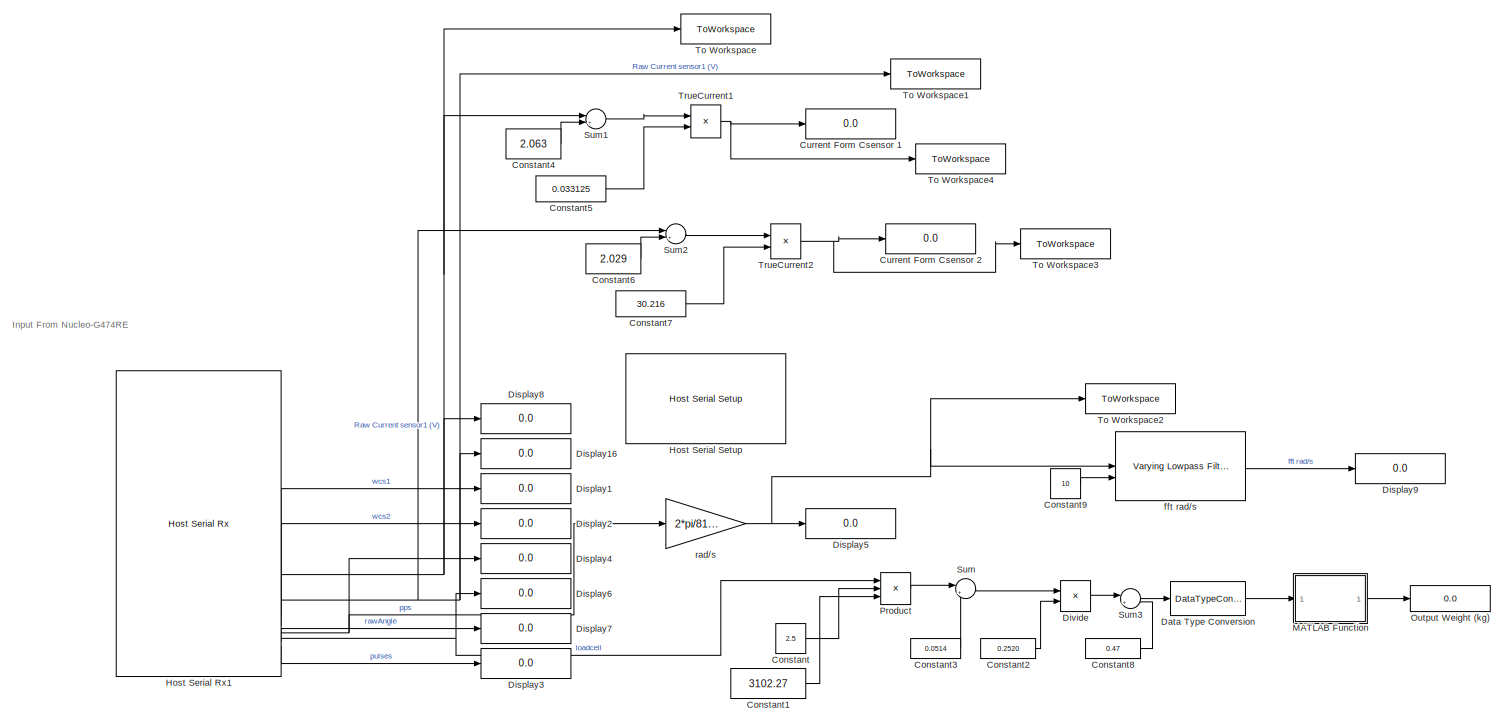
[diagram: root canvas - part 1/4, full width, top band]
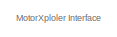
[diagram: root canvas - part 2/4, top left region]
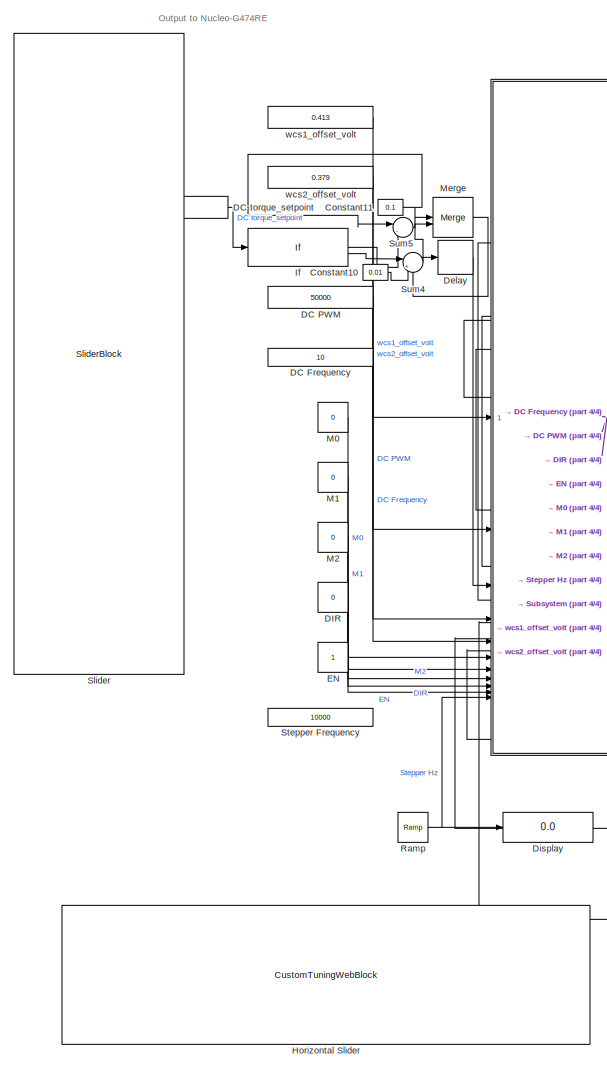
[diagram: root canvas - part 3/4, bottom left region]
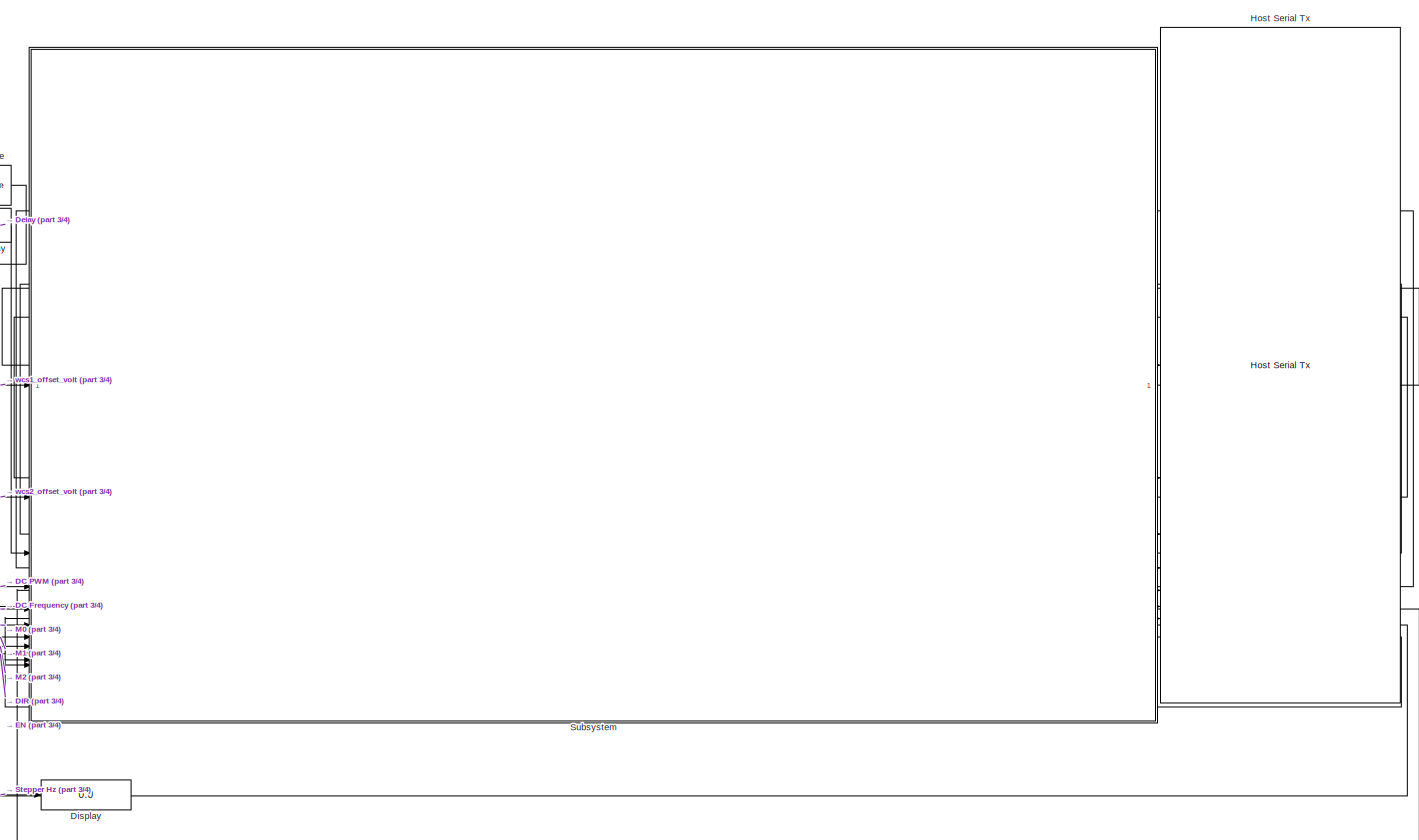
[diagram: root canvas - part 4/4, central region]
MODEL slx_10632bbbb3b5
KIND model
CONFIG AbsTol = auto
CONFIG EnableMultiTasking = off
CONFIG FixedStep = 0.01
CONFIG MaxStep = auto
CONFIG MinStep = auto
CONFIG RelTol = 1e-3
CONFIG SampleTimeConstraint = Unconstrained
CONFIG SolverName = FixedStepAuto
CONFIG StartTime = 0.0
CONFIG StopTime = inf
BLOCK [Display]   Output Weight (kg)
  Decimation = 1
BLOCK [Constant] Constant
  Value = 2.5
BLOCK [Constant] Constant1
  Value = 3102.27
BLOCK [Constant] Constant10
  Value = 0.01
BLOCK [Constant] Constant11
  Value = 0.1
BLOCK [Constant] Constant2
  Value = 0.2520
BLOCK [Constant] Constant3
  Value = 0.0514
BLOCK [Constant] Constant4
  Value = 2.063
BLOCK [Constant] Constant5
  Value = 0.033125
BLOCK [Constant] Constant6
  Value = 2.029
BLOCK [Constant] Constant7
  Value = 30.216
BLOCK [Constant] Constant8
  Value = 0.47
BLOCK [Constant] Constant9
  Value = 10
BLOCK [Display] Current Form Csensor 1
  Decimation = 1
BLOCK [Display] Current Form Csensor 2
  Decimation = 1
BLOCK [Constant] DC Frequency
  Value = 10
BLOCK [Constant] DC PWM
  Value = 50000
BLOCK [Constant] DC torque_setpoint
  Value = 0
BLOCK [Constant] DIR
  OutDataTypeStr = uint8
  Value = 0
BLOCK [DataTypeConversion] Data Type Conversion
  OutDataTypeStr = double
  RndMeth = Floor
  SaturateOnIntegerOverflow = off
BLOCK [Delay] Delay
  DelayLength = 100
  InputPortMap = u0
BLOCK [Display] Display
  Decimation = 1
BLOCK [Display] Display1
  Decimation = 1
BLOCK [Display] Display16
  Decimation = 1
BLOCK [Display] Display2
  Decimation = 1
BLOCK [Display] Display3
  Decimation = 1
BLOCK [Display] Display4
  Decimation = 1
BLOCK [Display] Display5
  Decimation = 1
BLOCK [Display] Display6
  Decimation = 1
BLOCK [Display] Display7
  Decimation = 1
BLOCK [Display] Display8
  Decimation = 1
BLOCK [Display] Display9
  Decimation = 1
BLOCK [Product] Divide
  Inputs = */
BLOCK [Constant] EN
  OutDataTypeStr = uint8
BLOCK [CustomTuningWebBlock] Horizontal Slider
  Configuration = {"components":[{"name":"LinearScaleComponent","settings":{"bounds":{"max":22000,"min":1000,"tickInterval":"auto"},"internalTickHeightScaleFactor":0.5,"labelColor":[255,255,200],"labelFont":{"font":"Arial","fontSize":12},"labelOffset":0.05,"labelTransparency":1,"needleImage":{"size":[596,842],"src":"data:image\/svg+xml;base64,PD94bWwgdmVyc2lvbj0iMS4wIiBlbmNvZGluZz0idXRmLTgiPz4NCjwhLS0gR2VuZXJhdG9yO...<+5495ch>
  LabelPosition = Hide
  ShowInitialText = on
BLOCK [Reference] Host Serial Rx1  REF=amg_usbconverter_n_connect_lib/Host Serial Rx
  SourceBlock = amg_usbconverter_n_connect_lib/Host Serial Rx
  SourceProductName = aMG USB Converter N
  SourceType = amg_usbconverter_n_connect
BLOCK [Reference] Host Serial Setup  REF=amg_usbconverter_n_connect_lib/Host Serial Setup
  SourceBlock = amg_usbconverter_n_connect_lib/Host Serial Setup
  SourceProductName = aMG USB Converter N
  SourceType = amg_usbconverter_n_connect
BLOCK [Reference] Host Serial Tx  REF=amg_usbconverter_n_connect_lib/Host Serial Tx
  SourceBlock = amg_usbconverter_n_connect_lib/Host Serial Tx
  SourceProductName = aMG USB Converter N
  SourceType = amg_usbconverter_n_connect
BLOCK [If] If
  IfExpression = u1 > 0.1
BLOCK [Constant] M0
  OutDataTypeStr = uint8
  Value = 0
BLOCK [Constant] M1
  OutDataTypeStr = uint8
  Value = 0
BLOCK [Constant] M2
  OutDataTypeStr = uint8
  Value = 0
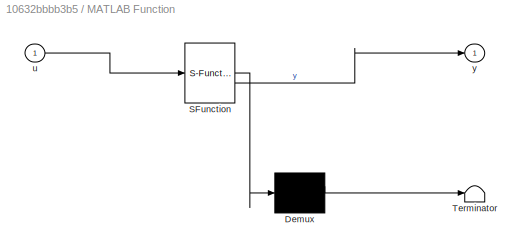
BLOCK [SubSystem] MATLAB Function
  ErrorFcn = Stateflow.Translate.translate
  PermitHierarchicalResolution = ExplicitOnly
  SFBlockType = MATLAB Function
  TreatAsAtomicUnit = on
BLOCK [Demux] MATLAB Function/ Demux 
  Outputs = 1
BLOCK [S-Function] MATLAB Function/ SFunction 
  EnableBusSupport = on
  FunctionName = sf_sfun
  PortCounts = [1 2]
  SFcnIsStateOwnerBlock = off
  SFunctionDeploymentMode = off
  Tag = Stateflow S-Function 2
BLOCK [Terminator] MATLAB Function/ Terminator 
BLOCK [Inport] MATLAB Function/u
BLOCK [Outport] MATLAB Function/y
BLOCK [Merge] Merge
BLOCK [Product] Product
  Inputs = **/
BLOCK [Reference] Ramp  REF=simulink/Sources/Ramp
  SourceBlock = simulink/Sources/Ramp
  SourceType = Ramp
BLOCK [SliderBlock] Slider
  NameLocation = left
  ScaleMax = 65535
  ScaleMin = -65535
BLOCK [Constant] Stepper Frequency
  Value = 10000
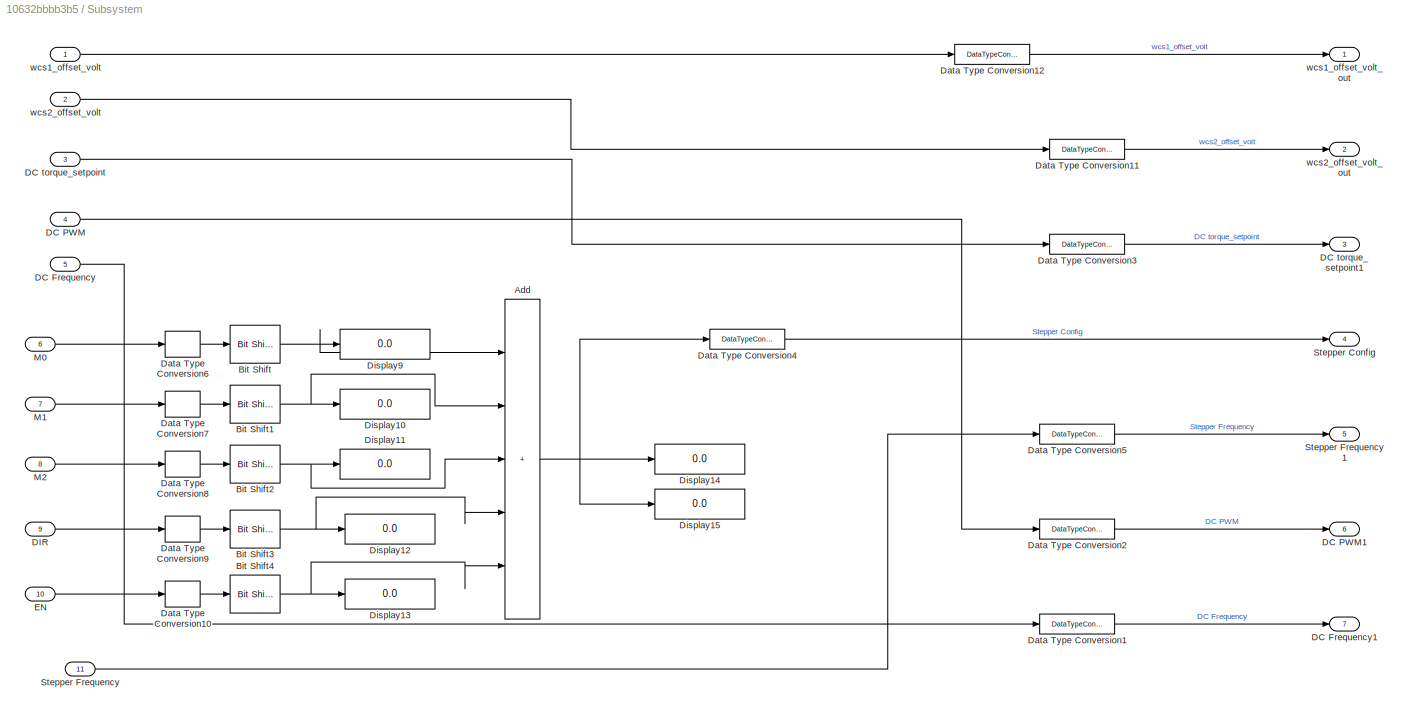
BLOCK [SubSystem] Subsystem
BLOCK [Sum] Subsystem/Add
  IconShape = rectangular
  Inputs = +++++
BLOCK [Reference] Subsystem/Bit Shift  REF=hdlsllib/Logic and Bit
Operations/Bit Shift
  SourceBlock = hdlsllib/Logic and Bit\nOperations/Bit Shift
  SourceType = Bit Shift
BLOCK [Reference] Subsystem/Bit Shift1  REF=hdlsllib/Logic and Bit
Operations/Bit Shift
  SourceBlock = hdlsllib/Logic and Bit\nOperations/Bit Shift
  SourceType = Bit Shift
BLOCK [Reference] Subsystem/Bit Shift2  REF=hdlsllib/Logic and Bit
Operations/Bit Shift
  SourceBlock = hdlsllib/Logic and Bit\nOperations/Bit Shift
  SourceType = Bit Shift
BLOCK [Reference] Subsystem/Bit Shift3  REF=hdlsllib/Logic and Bit
Operations/Bit Shift
  SourceBlock = hdlsllib/Logic and Bit\nOperations/Bit Shift
  SourceType = Bit Shift
BLOCK [Reference] Subsystem/Bit Shift4  REF=hdlsllib/Logic and Bit
Operations/Bit Shift
  SourceBlock = hdlsllib/Logic and Bit\nOperations/Bit Shift
  SourceType = Bit Shift
BLOCK [Inport] Subsystem/DC Frequency
  Port = 5
BLOCK [Outport] Subsystem/DC Frequency1
  Port = 7
BLOCK [Inport] Subsystem/DC PWM
  Port = 4
BLOCK [Outport] Subsystem/DC PWM1
  Port = 6
BLOCK [Inport] Subsystem/DC torque_setpoint
  Port = 3
BLOCK [Outport] Subsystem/DC torque_setpoint1
  Port = 3
BLOCK [Inport] Subsystem/DIR
  Port = 9
BLOCK [DataTypeConversion] Subsystem/Data Type Conversion1
  OutDataTypeStr = int32
  RndMeth = Floor
  SaturateOnIntegerOverflow = off
BLOCK [DataTypeConversion] Subsystem/Data Type Conversion10
  OutDataTypeStr = uint8
  RndMeth = Floor
  SaturateOnIntegerOverflow = off
BLOCK [DataTypeConversion] Subsystem/Data Type Conversion11
  OutDataTypeStr = single
  RndMeth = Floor
  SaturateOnIntegerOverflow = off
BLOCK [DataTypeConversion] Subsystem/Data Type Conversion12
  OutDataTypeStr = single
  RndMeth = Floor
  SaturateOnIntegerOverflow = off
BLOCK [DataTypeConversion] Subsystem/Data Type Conversion2
  OutDataTypeStr = int32
  RndMeth = Floor
  SaturateOnIntegerOverflow = off
BLOCK [DataTypeConversion] Subsystem/Data Type Conversion3
  OutDataTypeStr = single
  RndMeth = Floor
  SaturateOnIntegerOverflow = off
BLOCK [DataTypeConversion] Subsystem/Data Type Conversion4
  OutDataTypeStr = uint8
  RndMeth = Floor
  SaturateOnIntegerOverflow = off
BLOCK [DataTypeConversion] Subsystem/Data Type Conversion5
  OutDataTypeStr = int32
  RndMeth = Floor
  SaturateOnIntegerOverflow = off
BLOCK [DataTypeConversion] Subsystem/Data Type Conversion6
  OutDataTypeStr = uint8
  RndMeth = Floor
  SaturateOnIntegerOverflow = off
BLOCK [DataTypeConversion] Subsystem/Data Type Conversion7
  OutDataTypeStr = uint8
  RndMeth = Floor
  SaturateOnIntegerOverflow = off
BLOCK [DataTypeConversion] Subsystem/Data Type Conversion8
  OutDataTypeStr = uint8
  RndMeth = Floor
  SaturateOnIntegerOverflow = off
BLOCK [DataTypeConversion] Subsystem/Data Type Conversion9
  OutDataTypeStr = uint8
  RndMeth = Floor
  SaturateOnIntegerOverflow = off
BLOCK [Display] Subsystem/Display10
  Decimation = 1
  Format = binary (Stored Integer)
BLOCK [Display] Subsystem/Display11
  Decimation = 1
  Format = binary (Stored Integer)
BLOCK [Display] Subsystem/Display12
  Decimation = 1
  Format = binary (Stored Integer)
BLOCK [Display] Subsystem/Display13
  Decimation = 1
  Format = binary (Stored Integer)
BLOCK [Display] Subsystem/Display14
  Decimation = 1
  Format = binary (Stored Integer)
BLOCK [Display] Subsystem/Display15
  Decimation = 1
BLOCK [Display] Subsystem/Display9
  Decimation = 1
  Format = binary (Stored Integer)
BLOCK [Inport] Subsystem/EN
  Port = 10
BLOCK [Inport] Subsystem/M0
  Port = 6
BLOCK [Inport] Subsystem/M1
  Port = 7
BLOCK [Inport] Subsystem/M2
  Port = 8
BLOCK [Outport] Subsystem/Stepper Config
  Port = 4
BLOCK [Inport] Subsystem/Stepper Frequency
  Port = 11
BLOCK [Outport] Subsystem/Stepper Frequency1
  Port = 5
BLOCK [Inport] Subsystem/wcs1_offset_volt
BLOCK [Outport] Subsystem/wcs1_offset_volt_out
BLOCK [Inport] Subsystem/wcs2_offset_volt
  Port = 2
BLOCK [Outport] Subsystem/wcs2_offset_volt_out
  Port = 2
BLOCK [Sum] Sum
  Inputs = |++
BLOCK [Sum] Sum1
  Inputs = |+-
BLOCK [Sum] Sum2
  Inputs = |+-
BLOCK [Sum] Sum3
  Inputs = |+-
BLOCK [Sum] Sum4
  Inputs = |++
BLOCK [Sum] Sum5
  Inputs = |-+
BLOCK [ToWorkspace] To Workspace
  Decimation = 20
  FixptAsFi = on
  MaxDataPoints = 300
  SampleTime = -1
  Save2DSignal = 2-D array (concatenate along first dimension)
  VariableName = rawV1
BLOCK [ToWorkspace] To Workspace1
  FixptAsFi = on
  MaxDataPoints = 300
  SampleTime = -1
  Save2DSignal = 2-D array (concatenate along first dimension)
  VariableName = rawV2
BLOCK [ToWorkspace] To Workspace2
  FixptAsFi = on
  SampleTime = -1
  Save2DSignal = 2-D array (concatenate along first dimension)
  VariableName = rawradsform1000Hzstepper
BLOCK [ToWorkspace] To Workspace3
  FixptAsFi = on
  MaxDataPoints = 300
  SampleTime = -1
  VariableName = TrueCurrent2
BLOCK [ToWorkspace] To Workspace4
  FixptAsFi = on
  MaxDataPoints = 300
  SampleTime = -1
  VariableName = TrueCurrent1
BLOCK [Product] TrueCurrent1
  Inputs = */
BLOCK [Product] TrueCurrent2
  Inputs = **
BLOCK [Reference] fft rad//s  REF=cstblocks/Linear Parameter Varying/Varying Lowpass Filter
  SourceBlock = cstblocks/Linear Parameter Varying/Varying Lowpass Filter
  SourceType = Varying Lowpass Filter
BLOCK [Gain] rad//s
  Gain = 2*pi/8192
BLOCK [Constant] wcs1_offset_volt
  OutDataTypeStr = single
  Value = 0.413
BLOCK [Constant] wcs2_offset_volt
  OutDataTypeStr = single
  Value = 0.379
ANNOTATION (root): Input From Nucleo-G474RE
ANNOTATION (root): MotorXploler Interface
ANNOTATION (root): Output to Nucleo-G474RE
LINE Constant10:1 -> Sum4:2
LINE Constant11:1 -> Sum5:1
LINE Constant1:1 -> Product:3
LINE Constant2:1 -> Divide:2
LINE Constant3:1 -> Sum:2
LINE Constant4:1 -> Sum1:2
LINE Constant5:1 -> TrueCurrent1:2
LINE Constant6:1 -> Sum2:2
LINE Constant7:1 -> TrueCurrent2:2
LINE Constant8:1 -> Sum3:2
LINE Constant9:1 -> fft rad//s:2
LINE Constant:1 -> Product:2
LINE DC Frequency:1 -> Subsystem:5
LINE DC PWM:1 -> Subsystem:4
LINE DC torque_setpoint:1 -> If:1
LINE DIR:1 -> Subsystem:9
LINE Data Type Conversion:1 -> MATLAB Function:1
LINE Delay:1 -> Subsystem:3
LINE Divide:1 -> Sum3:1
LINE EN:1 -> Subsystem:10
NET Host Serial Rx1:2 -> Display8:1, Sum1:1, To Workspace:1
NET Host Serial Rx1:3 -> Display16:1, Sum2:1, To Workspace1:1
LINE Host Serial Rx1:4 -> Display1:1
LINE Host Serial Rx1:5 -> Display2:1
NET Host Serial Rx1:6 -> Display4:1, rad//s:1
NET Host Serial Rx1:7 -> Display6:1, Product:1
LINE Host Serial Rx1:8 -> Display7:1
LINE Host Serial Rx1:9 -> Display3:1
LINE If:1 -> Sum5:2
LINE If:2 -> Sum4:1
LINE M0:1 -> Subsystem:6
LINE M1:1 -> Subsystem:7
LINE M2:1 -> Subsystem:8
LINE MATLAB Function:1 ->   Output Weight (kg):1
LINE Merge:1 -> Delay:1
LINE Product:1 -> Sum:1
NET Ramp:1 -> Display:1, Subsystem:11
NET Subsystem/Add:1 -> Subsystem/Data Type Conversion4:1, Subsystem/Display14:1, Subsystem/Display15:1
NET Subsystem/Bit Shift1:1 -> Subsystem/Add:2, Subsystem/Display10:1
NET Subsystem/Bit Shift2:1 -> Subsystem/Add:3, Subsystem/Display11:1
NET Subsystem/Bit Shift3:1 -> Subsystem/Add:4, Subsystem/Display12:1
NET Subsystem/Bit Shift4:1 -> Subsystem/Add:5, Subsystem/Display13:1
NET Subsystem/Bit Shift:1 -> Subsystem/Add:1, Subsystem/Display9:1
LINE Subsystem/DC Frequency:1 -> Subsystem/Data Type Conversion1:1
LINE Subsystem/DC PWM:1 -> Subsystem/Data Type Conversion2:1
LINE Subsystem/DC torque_setpoint:1 -> Subsystem/Data Type Conversion3:1
LINE Subsystem/DIR:1 -> Subsystem/Data Type Conversion9:1
LINE Subsystem/Data Type Conversion10:1 -> Subsystem/Bit Shift4:1
LINE Subsystem/Data Type Conversion11:1 -> Subsystem/wcs2_offset_volt_out:1
LINE Subsystem/Data Type Conversion12:1 -> Subsystem/wcs1_offset_volt_out:1
LINE Subsystem/Data Type Conversion1:1 -> Subsystem/DC Frequency1:1
LINE Subsystem/Data Type Conversion2:1 -> Subsystem/DC PWM1:1
LINE Subsystem/Data Type Conversion3:1 -> Subsystem/DC torque_setpoint1:1
LINE Subsystem/Data Type Conversion4:1 -> Subsystem/Stepper Config:1
LINE Subsystem/Data Type Conversion5:1 -> Subsystem/Stepper Frequency1:1
LINE Subsystem/Data Type Conversion6:1 -> Subsystem/Bit Shift:1
LINE Subsystem/Data Type Conversion7:1 -> Subsystem/Bit Shift1:1
LINE Subsystem/Data Type Conversion8:1 -> Subsystem/Bit Shift2:1
LINE Subsystem/Data Type Conversion9:1 -> Subsystem/Bit Shift3:1
LINE Subsystem/EN:1 -> Subsystem/Data Type Conversion10:1
LINE Subsystem/M0:1 -> Subsystem/Data Type Conversion6:1
LINE Subsystem/M1:1 -> Subsystem/Data Type Conversion7:1
LINE Subsystem/M2:1 -> Subsystem/Data Type Conversion8:1
LINE Subsystem/Stepper Frequency:1 -> Subsystem/Data Type Conversion5:1
LINE Subsystem/wcs1_offset_volt:1 -> Subsystem/Data Type Conversion12:1
LINE Subsystem/wcs2_offset_volt:1 -> Subsystem/Data Type Conversion11:1
LINE Subsystem:1 -> Host Serial Tx:1
LINE Subsystem:2 -> Host Serial Tx:2
LINE Subsystem:3 -> Host Serial Tx:3
LINE Subsystem:4 -> Host Serial Tx:4
LINE Subsystem:5 -> Host Serial Tx:5
LINE Subsystem:6 -> Host Serial Tx:6
LINE Subsystem:7 -> Host Serial Tx:7
LINE Sum1:1 -> TrueCurrent1:1
LINE Sum2:1 -> TrueCurrent2:1
LINE Sum3:1 -> Data Type Conversion:1
LINE Sum4:1 -> Merge:2
LINE Sum5:1 -> Merge:1
LINE Sum:1 -> Divide:1
NET TrueCurrent1:1 -> Current Form Csensor 1:1, To Workspace4:1
NET TrueCurrent2:1 -> Current Form Csensor 2:1, To Workspace3:1
LINE fft rad//s:1 -> Display9:1
NET rad//s:1 -> Display5:1, To Workspace2:1, fft rad//s:1
LINE wcs1_offset_volt:1 -> Subsystem:1
LINE wcs2_offset_volt:1 -> Subsystem:2
note: NET lines group one-source signal fan-out (src -> all destinations, sorted); 1:1 wires keep LINE
CHART MATLAB Function states=1 transitions=1
  STATE_LABEL 'eML_blk_kernel()'
  STATE_LABEL 'SCRIPT:\nfunction y = fcn(u)\n\n    persistent buffer\n    persistent first\n    persistent last\n    persistent curr\n    persistent to_out\n\n    if isempty(buffer)\n        buffer = [];\n        first = 1;\n        last = 1000;\n        curr = 0;\n        to_out = u;\n    end\n\n    buffer(end+1) = u;\n\n    if curr >= last\n        to_out = mean(buffer(first:last));\n        first = first + 1;\n        last = last ...<+56ch>'
CHART  states=0 transitions=0
